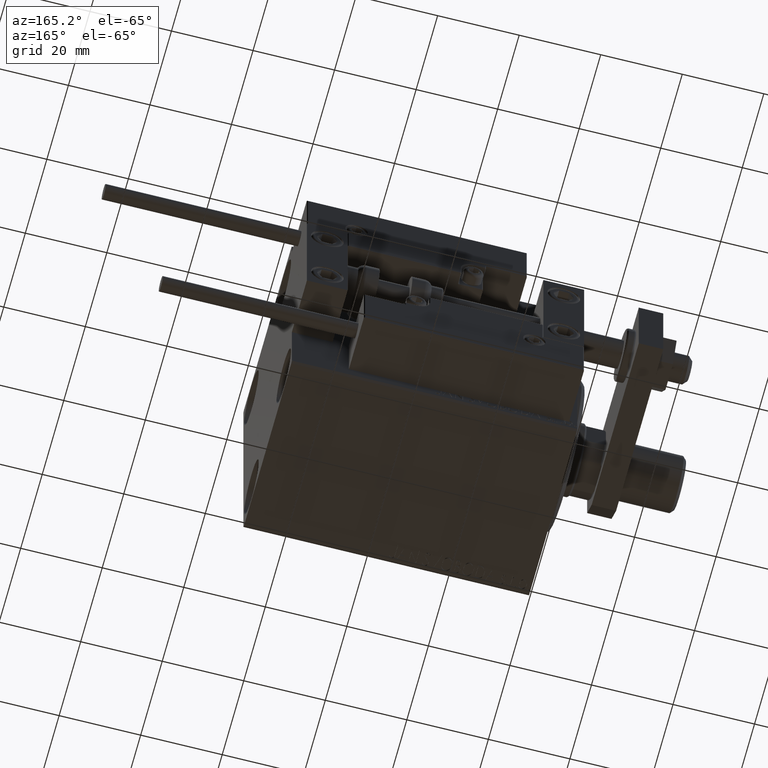
[diagram: clean part render]
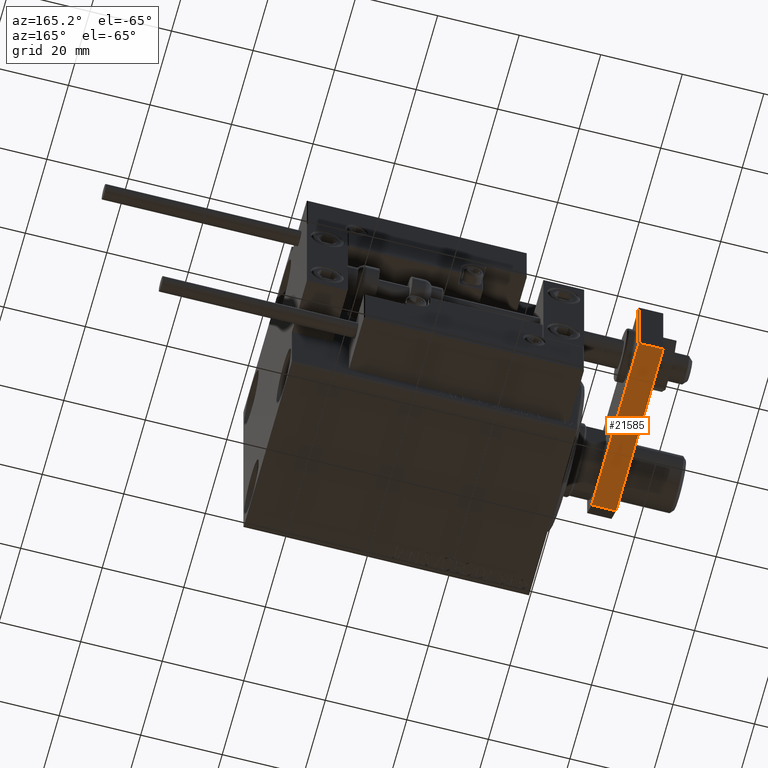
[diagram: same view with one face highlighted and labeled with its STEP entity id]
A machine part, auxiliary view. The second image highlights one B-rep face of the part: STEP entity #21585.
In plain terms, the highlighted planar face has unit normal (0, -0, 1).
Its self-contained STEP definition (entity closure, byte-faithful):
#3479 = DIRECTION ( 'NONE',  ( 1.084202172485504434E-16, 1.000000000000000000, 0.000000000000000000 ) ) ;
#3731 = PLANE ( 'NONE',  #34344 ) ;
#4498 = FACE_OUTER_BOUND ( 'NONE', #30811, .T. ) ;
#6202 = VECTOR ( 'NONE', #18889, 1000.000000000000000 ) ;
#9028 = VERTEX_POINT ( 'NONE', #23223 ) ;
#10834 = EDGE_CURVE ( 'NONE', #50353, #9028, #19138, .T. ) ;
#13443 = VECTOR ( 'NONE', #35450, 1000.000000000000000 ) ;
#14428 = CARTESIAN_POINT ( 'NONE',  ( -10.00000000000000533, 4.240000000000021529, 6.000000000000000000 ) ) ;
#17786 = LINE ( 'NONE', #37047, #39386 ) ;
#18379 = CARTESIAN_POINT ( 'NONE',  ( -10.00000000000000533, 4.240000000000021529, 0.000000000000000000 ) ) ;
#18753 = EDGE_CURVE ( 'NONE', #50353, #27963, #33138, .T. ) ;
#18889 = DIRECTION ( 'NONE',  ( -0.000000000000000000, -0.000000000000000000, -1.000000000000000000 ) ) ;
#19138 = LINE ( 'NONE', #34804, #6202 ) ;
#20670 = ORIENTED_EDGE ( 'NONE', *, *, #10834, .T. ) ;
#21093 = DIRECTION ( 'NONE',  ( -1.084202172485504434E-16, -1.000000000000000000, 0.000000000000000000 ) ) ;
#21385 = CARTESIAN_POINT ( 'NONE',  ( -10.00000000000000533, 4.240000000000021529, 6.000000000000000000 ) ) ;
#21585 = ADVANCED_FACE ( 'NONE', ( #4498 ), #3731, .F. ) ;
#21831 = ORIENTED_EDGE ( 'NONE', *, *, #24606, .T. ) ;
#22130 = CARTESIAN_POINT ( 'NONE',  ( -10.00000000000000000, 48.00000000000000000, 6.000000000000000000 ) ) ;
#23223 = CARTESIAN_POINT ( 'NONE',  ( -10.00000000000000000, 48.00000000000000000, 0.000000000000000000 ) ) ;
#23530 = CARTESIAN_POINT ( 'NONE',  ( -10.00000000000000000, 48.00000000000000000, 6.000000000000000000 ) ) ;
#24606 = EDGE_CURVE ( 'NONE', #9028, #26372, #17786, .T. ) ;
#26372 = VERTEX_POINT ( 'NONE', #18379 ) ;
#27120 = DIRECTION ( 'NONE',  ( 1.000000000000000000, -1.084202172485504434E-16, 0.000000000000000000 ) ) ;
#27963 = VERTEX_POINT ( 'NONE', #21385 ) ;
#29100 = ORIENTED_EDGE ( 'NONE', *, *, #49217, .T. ) ;
#30811 = EDGE_LOOP ( 'NONE', ( #21831, #29100, #32699, #20670 ) ) ;
#32699 = ORIENTED_EDGE ( 'NONE', *, *, #18753, .F. ) ;
#33138 = LINE ( 'NONE', #36246, #34269 ) ;
#34269 = VECTOR ( 'NONE', #21093, 1000.000000000000000 ) ;
#34344 = AXIS2_PLACEMENT_3D ( 'NONE', #23530, #27120, #3479 ) ;
#34804 = CARTESIAN_POINT ( 'NONE',  ( -10.00000000000000000, 48.00000000000000000, 6.000000000000000000 ) ) ;
#35450 = DIRECTION ( 'NONE',  ( 0.000000000000000000, 0.000000000000000000, 1.000000000000000000 ) ) ;
#35958 = LINE ( 'NONE', #14428, #13443 ) ;
#36246 = CARTESIAN_POINT ( 'NONE',  ( -10.00000000000000000, 48.00000000000000000, 6.000000000000000000 ) ) ;
#37047 = CARTESIAN_POINT ( 'NONE',  ( -10.00000000000000000, 48.00000000000000000, 0.000000000000000000 ) ) ;
#39386 = VECTOR ( 'NONE', #48824, 1000.000000000000000 ) ;
#48824 = DIRECTION ( 'NONE',  ( -1.084202172485504434E-16, -1.000000000000000000, 0.000000000000000000 ) ) ;
#49217 = EDGE_CURVE ( 'NONE', #26372, #27963, #35958, .T. ) ;
#50353 = VERTEX_POINT ( 'NONE', #22130 ) ;